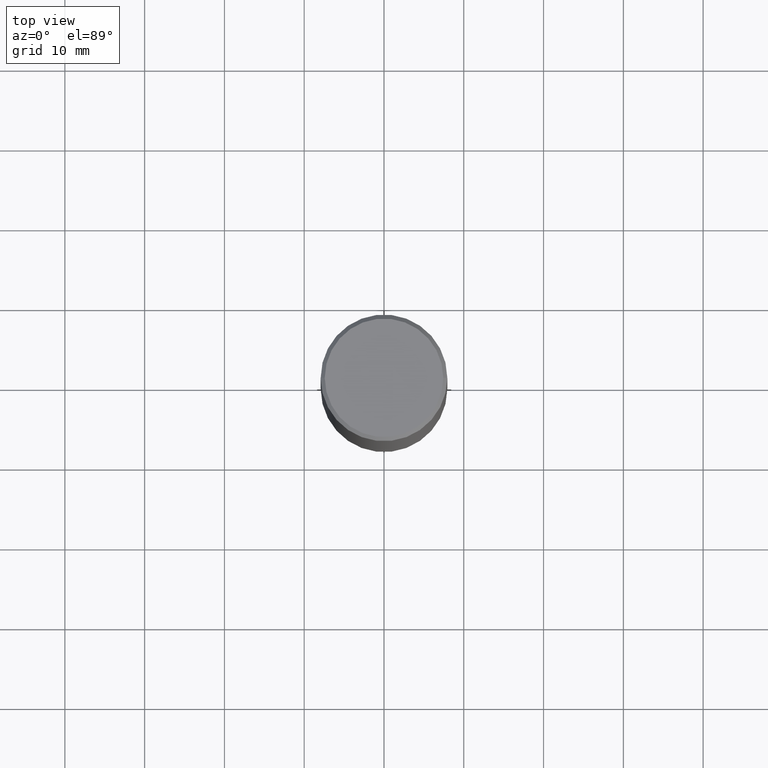
[diagram: clean part render]
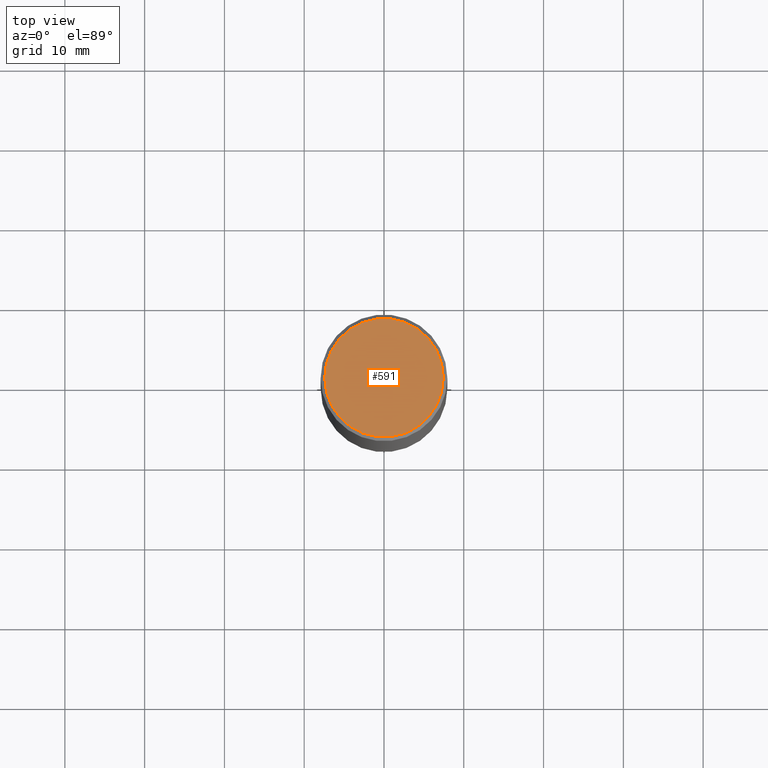
[diagram: same view with one face highlighted and labeled with its STEP entity id]
A machine part, top view. The second image highlights one B-rep face of the part: STEP entity #591.
In plain terms, the highlighted planar face has unit normal (0, -0, -1).
Its self-contained STEP definition (entity closure, byte-faithful):
#2 = CIRCLE ( 'NONE', #584, 0.2924999999999999267 ) ;
#50 = EDGE_LOOP ( 'NONE', ( #715, #693 ) ) ;
#53 = AXIS2_PLACEMENT_3D ( 'NONE', #360, #242, #109 ) ;
#68 = VERTEX_POINT ( 'NONE', #497 ) ;
#81 = CARTESIAN_POINT ( 'NONE',  ( 2.042516583223232540E-15, 0.2924999999999999267, -1.023480010969099269E-15 ) ) ;
#109 = DIRECTION ( 'NONE',  ( 1.000000000000000000, -6.982962677686266711E-15, 4.876067333457690598E-29 ) ) ;
#229 = FACE_OUTER_BOUND ( 'NONE', #50, .T. ) ;
#242 = DIRECTION ( 'NONE',  ( -2.445468806185136597E-29, 3.491481338843145583E-15, 1.000000000000000000 ) ) ;
#251 = CARTESIAN_POINT ( 'NONE',  ( 0.2924999999999999267, -2.110215457714319931E-15, -4.443438714944215967E-18 ) ) ;
#278 = PLANE ( 'NONE',  #391 ) ;
#300 = VERTEX_POINT ( 'NONE', #251 ) ;
#307 = EDGE_CURVE ( 'NONE', #300, #68, #2, .T. ) ;
#360 = CARTESIAN_POINT ( 'NONE',  ( 1.086629076962696211E-46, -1.551418335357160018E-32, -4.443438714958737479E-18 ) ) ;
#373 = DIRECTION ( 'NONE',  ( -2.445468806185136597E-29, 3.491481338843145583E-15, 1.000000000000000000 ) ) ;
#391 = AXIS2_PLACEMENT_3D ( 'NONE', #81, #611, #488 ) ;
#427 = CARTESIAN_POINT ( 'NONE',  ( 1.086629076962696211E-46, -1.551418335357160018E-32, -4.443438714958737479E-18 ) ) ;
#488 = DIRECTION ( 'NONE',  ( -1.000000000000000000, 6.982962677686265922E-15, -4.876176775795935793E-29 ) ) ;
#497 = CARTESIAN_POINT ( 'NONE',  ( -0.2924999999999999267, 2.077431396611663794E-15, -4.443438714973144205E-18 ) ) ;
#513 = DIRECTION ( 'NONE',  ( 1.000000000000000000, -6.982962677686266711E-15, 4.876067333457690598E-29 ) ) ;
#584 = AXIS2_PLACEMENT_3D ( 'NONE', #427, #373, #513 ) ;
#591 = ADVANCED_FACE ( 'NONE', ( #229 ), #278, .F. ) ;
#611 = DIRECTION ( 'NONE',  ( 2.438088387897960049E-29, -3.491481338843145188E-15, -1.000000000000000000 ) ) ;
#651 = EDGE_CURVE ( 'NONE', #68, #300, #667, .T. ) ;
#667 = CIRCLE ( 'NONE', #53, 0.2924999999999999267 ) ;
#693 = ORIENTED_EDGE ( 'NONE', *, *, #307, .T. ) ;
#715 = ORIENTED_EDGE ( 'NONE', *, *, #651, .T. ) ;